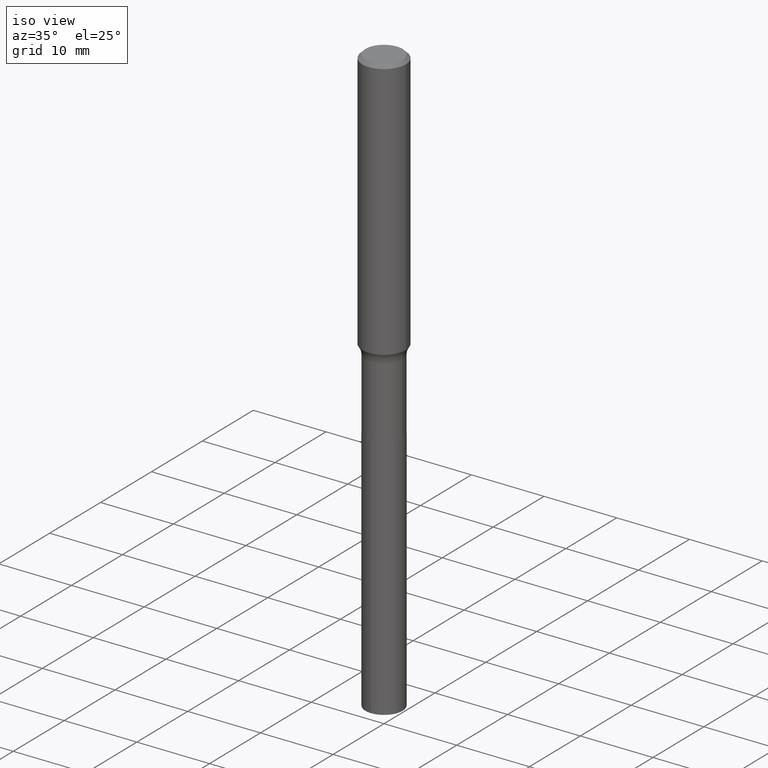
[diagram: clean part render]
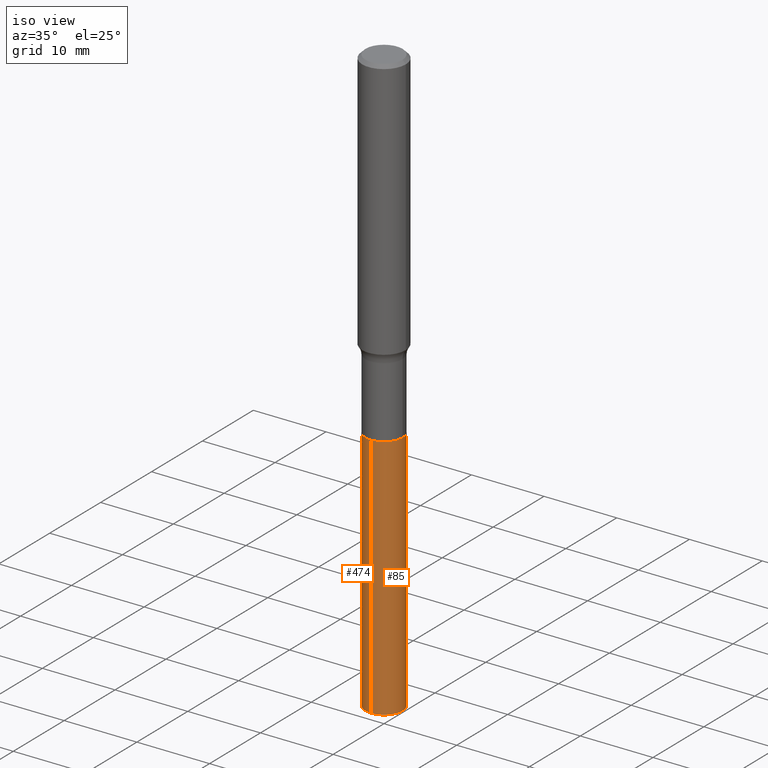
[diagram: same view with one multi-face feature highlighted, each face labeled with its STEP entity id]
A machine part, iso view. The highlighted faces form ONE feature: a constant-radius fillet chain: 2 tangent blend faces with common blend radius 2.5502 mm. The faces share edges in the B-rep.
Their STEP definitions:
[1] entity #85 (Cylinder):
#10 = VERTEX_POINT ( 'NONE', #20 ) ;
#18 = CARTESIAN_POINT ( 'NONE',  ( 4.524117291442502816E-29, -6.459240476859820373E-15, -1.850000000000000311 ) ) ;
#19 = CYLINDRICAL_SURFACE ( 'NONE', #415, 0.1004000000000000031 ) ;
#20 = CARTESIAN_POINT ( 'NONE',  ( -7.010894528396559145E-16, -0.1004000000000064563, -1.849999999999999867 ) ) ;
#69 = CARTESIAN_POINT ( 'NONE',  ( 7.133849067031857711E-16, 0.1003999999999935500, -1.850000000000000533 ) ) ;
#85 = ADVANCED_FACE ( 'NONE', ( #272 ), #19, .T. ) ;
#91 = CARTESIAN_POINT ( 'NONE',  ( 7.794765010124543835E-29, -1.112888643234222814E-14, -3.187435766926150826 ) ) ;
#103 = EDGE_CURVE ( 'NONE', #356, #393, #389, .T. ) ;
#110 = EDGE_CURVE ( 'NONE', #393, #408, #370, .T. ) ;
#157 = CARTESIAN_POINT ( 'NONE',  ( -7.010894528396231768E-16, -0.1004000000000111331, -3.187435766926150382 ) ) ;
#177 = LINE ( 'NONE', #339, #189 ) ;
#187 = CARTESIAN_POINT ( 'NONE',  ( 7.133849067032188047E-16, 0.1003999999999935500, -1.850000000000000533 ) ) ;
#189 = VECTOR ( 'NONE', #445, 39.37007874015748143 ) ;
#212 = EDGE_CURVE ( 'NONE', #10, #408, #459, .T. ) ;
#215 = ORIENTED_EDGE ( 'NONE', *, *, #103, .T. ) ;
#218 = DIRECTION ( 'NONE',  ( -2.445461531359386965E-29, 3.491491756807676678E-15, 1.000000000000000000 ) ) ;
#219 = AXIS2_PLACEMENT_3D ( 'NONE', #320, #218, #367 ) ;
#224 = ORIENTED_EDGE ( 'NONE', *, *, #384, .F. ) ;
#272 = FACE_OUTER_BOUND ( 'NONE', #340, .T. ) ;
#281 = VECTOR ( 'NONE', #405, 39.37007874015748143 ) ;
#320 = CARTESIAN_POINT ( 'NONE',  ( 4.524117291442502816E-29, -6.459240476859820373E-15, -1.850000000000000311 ) ) ;
#339 = CARTESIAN_POINT ( 'NONE',  ( -7.010894528396559145E-16, -0.1004000000000064563, -1.849999999999999867 ) ) ;
#340 = EDGE_LOOP ( 'NONE', ( #215, #443, #483, #224 ) ) ;
#349 = DIRECTION ( 'NONE',  ( -2.445461531359386965E-29, 3.491491756807676678E-15, 1.000000000000000000 ) ) ;
#356 = VERTEX_POINT ( 'NONE', #157 ) ;
#359 = DIRECTION ( 'NONE',  ( -2.445461531359386965E-29, 3.491491756807676678E-15, 1.000000000000000000 ) ) ;
#367 = DIRECTION ( 'NONE',  ( -6.982962677686266711E-15, -1.000000000000000000, 2.720964137115799877E-15 ) ) ;
#370 = LINE ( 'NONE', #69, #281 ) ;
#384 = EDGE_CURVE ( 'NONE', #356, #10, #177, .T. ) ;
#389 = CIRCLE ( 'NONE', #456, 0.1004000000000000031 ) ;
#393 = VERTEX_POINT ( 'NONE', #479 ) ;
#405 = DIRECTION ( 'NONE',  ( -2.445461531359386965E-29, 3.491491756807676678E-15, 1.000000000000000000 ) ) ;
#408 = VERTEX_POINT ( 'NONE', #187 ) ;
#415 = AXIS2_PLACEMENT_3D ( 'NONE', #18, #349, #426 ) ;
#426 = DIRECTION ( 'NONE',  ( -6.982962677686266711E-15, -1.000000000000000000, 2.720964137115799877E-15 ) ) ;
#441 = DIRECTION ( 'NONE',  ( -6.982962677686266711E-15, -1.000000000000000000, 5.441928274231599754E-15 ) ) ;
#443 = ORIENTED_EDGE ( 'NONE', *, *, #110, .T. ) ;
#445 = DIRECTION ( 'NONE',  ( -2.445461531359386965E-29, 3.491491756807676678E-15, 1.000000000000000000 ) ) ;
#456 = AXIS2_PLACEMENT_3D ( 'NONE', #91, #359, #441 ) ;
#459 = CIRCLE ( 'NONE', #219, 0.1004000000000000031 ) ;
#479 = CARTESIAN_POINT ( 'NONE',  ( 7.133849067032185089E-16, 0.1003999999999888870, -3.187435766926151270 ) ) ;
#483 = ORIENTED_EDGE ( 'NONE', *, *, #212, .F. ) ;
[2] entity #474 (Cylinder):
#2 = FACE_OUTER_BOUND ( 'NONE', #245, .T. ) ;
#8 = DIRECTION ( 'NONE',  ( -2.445461531359386965E-29, 3.491491756807676678E-15, 1.000000000000000000 ) ) ;
#10 = VERTEX_POINT ( 'NONE', #20 ) ;
#14 = DIRECTION ( 'NONE',  ( -6.982962677686266711E-15, -1.000000000000000000, 5.441928274231599754E-15 ) ) ;
#20 = CARTESIAN_POINT ( 'NONE',  ( -7.010894528396559145E-16, -0.1004000000000064563, -1.849999999999999867 ) ) ;
#62 = ORIENTED_EDGE ( 'NONE', *, *, #348, .T. ) ;
#69 = CARTESIAN_POINT ( 'NONE',  ( 7.133849067031857711E-16, 0.1003999999999935500, -1.850000000000000533 ) ) ;
#102 = EDGE_CURVE ( 'NONE', #408, #10, #390, .T. ) ;
#110 = EDGE_CURVE ( 'NONE', #393, #408, #370, .T. ) ;
#133 = AXIS2_PLACEMENT_3D ( 'NONE', #485, #146, #406 ) ;
#146 = DIRECTION ( 'NONE',  ( -2.445461531359386965E-29, 3.491491756807676678E-15, 1.000000000000000000 ) ) ;
#157 = CARTESIAN_POINT ( 'NONE',  ( -7.010894528396231768E-16, -0.1004000000000111331, -3.187435766926150382 ) ) ;
#174 = AXIS2_PLACEMENT_3D ( 'NONE', #186, #286, #327 ) ;
#177 = LINE ( 'NONE', #339, #189 ) ;
#186 = CARTESIAN_POINT ( 'NONE',  ( 4.524117291442502816E-29, -6.459240476859820373E-15, -1.850000000000000311 ) ) ;
#187 = CARTESIAN_POINT ( 'NONE',  ( 7.133849067032188047E-16, 0.1003999999999935500, -1.850000000000000533 ) ) ;
#189 = VECTOR ( 'NONE', #445, 39.37007874015748143 ) ;
#211 = ORIENTED_EDGE ( 'NONE', *, *, #102, .F. ) ;
#222 = CYLINDRICAL_SURFACE ( 'NONE', #133, 0.1004000000000000031 ) ;
#245 = EDGE_LOOP ( 'NONE', ( #453, #62, #418, #211 ) ) ;
#281 = VECTOR ( 'NONE', #405, 39.37007874015748143 ) ;
#286 = DIRECTION ( 'NONE',  ( -2.445461531359386965E-29, 3.491491756807676678E-15, 1.000000000000000000 ) ) ;
#327 = DIRECTION ( 'NONE',  ( -6.982962677686266711E-15, -1.000000000000000000, 2.720964137115799877E-15 ) ) ;
#339 = CARTESIAN_POINT ( 'NONE',  ( -7.010894528396559145E-16, -0.1004000000000064563, -1.849999999999999867 ) ) ;
#347 = CARTESIAN_POINT ( 'NONE',  ( 7.794765010124543835E-29, -1.112888643234222814E-14, -3.187435766926150826 ) ) ;
#348 = EDGE_CURVE ( 'NONE', #393, #356, #480, .T. ) ;
#356 = VERTEX_POINT ( 'NONE', #157 ) ;
#370 = LINE ( 'NONE', #69, #281 ) ;
#384 = EDGE_CURVE ( 'NONE', #356, #10, #177, .T. ) ;
#390 = CIRCLE ( 'NONE', #174, 0.1004000000000000031 ) ;
#393 = VERTEX_POINT ( 'NONE', #479 ) ;
#398 = AXIS2_PLACEMENT_3D ( 'NONE', #347, #8, #14 ) ;
#405 = DIRECTION ( 'NONE',  ( -2.445461531359386965E-29, 3.491491756807676678E-15, 1.000000000000000000 ) ) ;
#406 = DIRECTION ( 'NONE',  ( -6.982962677686266711E-15, -1.000000000000000000, 2.720964137115799877E-15 ) ) ;
#408 = VERTEX_POINT ( 'NONE', #187 ) ;
#418 = ORIENTED_EDGE ( 'NONE', *, *, #384, .T. ) ;
#445 = DIRECTION ( 'NONE',  ( -2.445461531359386965E-29, 3.491491756807676678E-15, 1.000000000000000000 ) ) ;
#453 = ORIENTED_EDGE ( 'NONE', *, *, #110, .F. ) ;
#474 = ADVANCED_FACE ( 'NONE', ( #2 ), #222, .T. ) ;
#479 = CARTESIAN_POINT ( 'NONE',  ( 7.133849067032185089E-16, 0.1003999999999888870, -3.187435766926151270 ) ) ;
#480 = CIRCLE ( 'NONE', #398, 0.1004000000000000031 ) ;
#485 = CARTESIAN_POINT ( 'NONE',  ( 4.524117291442502816E-29, -6.459240476859820373E-15, -1.850000000000000311 ) ) ;